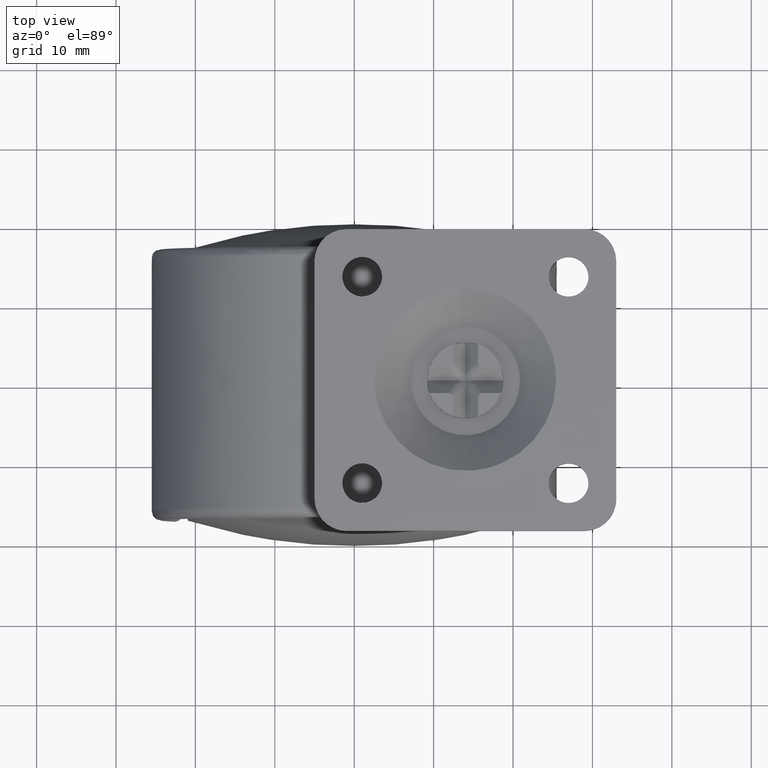
[diagram: clean part render]
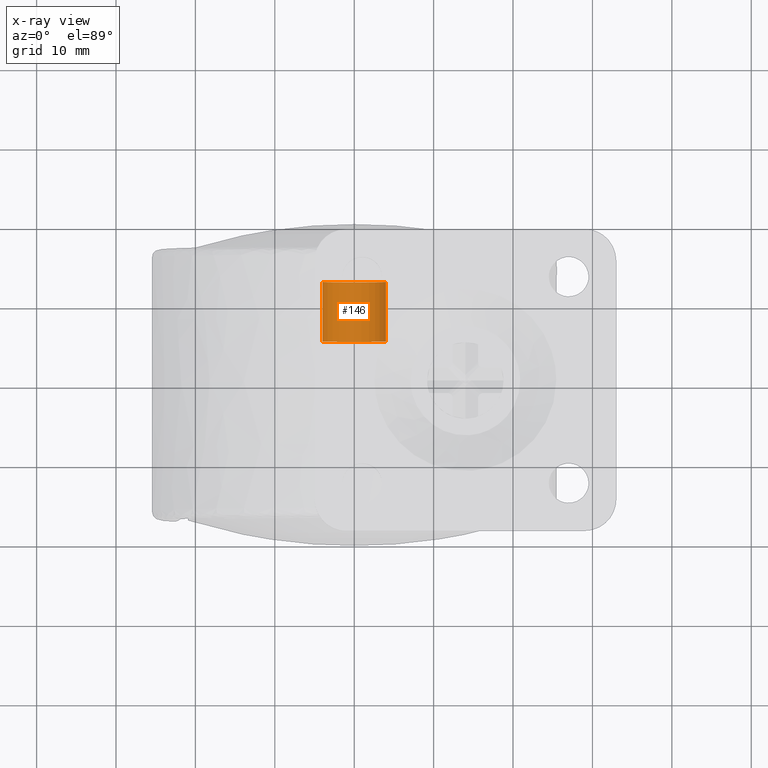
[diagram: x-ray — body ghosted, one internal face saturated and labeled with its STEP entity id]
A machine part, top view, then the same camera in x-ray: the body is ghosted and one INTERNAL B-rep face — a face not visible from any outside direction — is saturated and labeled: STEP entity #146.
In plain terms, the highlighted face is a freeform B-spline surface patch.
Its self-contained STEP definition (entity closure, byte-faithful):
#44=CARTESIAN_POINT('',(3.972038105454666,-13.187500000000005,0.472136938627034));
#45=CARTESIAN_POINT('',(3.985550461794422,-13.187500000000005,0.358458914551911));
#46=CARTESIAN_POINT('',(3.992539193687467,-13.187500000000000,0.244194158139428));
#47=CARTESIAN_POINT('',(4.236733351826894,-13.187500000000002,-3.748345035548039));
#48=CARTESIAN_POINT('',(0.244194158139428,-13.187500000000000,-3.992539193687467));
#49=CARTESIAN_POINT('',(-3.748345035548039,-13.187500000000002,-4.236733351826894));
#50=CARTESIAN_POINT('',(-3.992539193687467,-13.187500000000000,-0.244194158139428));
#51=CARTESIAN_POINT('',(3.972038105454666,-5.307812500000000,0.472136938627034));
#52=CARTESIAN_POINT('',(3.985550461794422,-5.307812499999998,0.358458914551911));
#53=CARTESIAN_POINT('',(3.992539193687467,-5.307812499999999,0.244194158139428));
#54=CARTESIAN_POINT('',(4.236733351826894,-5.307812499999999,-3.748345035548039));
#55=CARTESIAN_POINT('',(0.244194158139428,-5.307812499999999,-3.992539193687467));
#56=CARTESIAN_POINT('',(-3.748345035548039,-5.307812499999999,-4.236733351826894));
#57=CARTESIAN_POINT('',(-3.992539193687467,-5.307812499999999,-0.244194158139428));
#65=(BOUNDED_SURFACE()B_SPLINE_SURFACE(2,1,((#44,#51),(#45,#52),(#46,#53),(#47,#54),(#48,#55),(#49,#56),(#50,#57)),.UNSPECIFIED.,.F.,.F.,.U.)B_SPLINE_SURFACE_WITH_KNOTS((3,2,2,3),(2,2),(0.0,0.265096679918781,6.892513677888299,13.519930675857820),(0.0,7.879687500000005),.UNSPECIFIED.)GEOMETRIC_REPRESENTATION_ITEM()RATIONAL_B_SPLINE_SURFACE(((0.977505800795127,0.977505800795127),(0.988284271247462,0.988284271247462),(1.0,1.0),(0.707106781186548,0.707106781186548),(1.0,1.0),(0.707106781186548,0.707106781186548),(1.0,1.0)))REPRESENTATION_ITEM('')SURFACE());
#66=CARTESIAN_POINT('',(3.972038243175446,-13.0,0.472135779993803));
#67=VERTEX_POINT('',#66);
#68=CARTESIAN_POINT('',(0.0,-13.0,-4.0));
#69=VERTEX_POINT('',#68);
#70=CARTESIAN_POINT('',(3.972038243175446,-13.0,0.472135779993803));
#71=CARTESIAN_POINT('',(4.0,-13.000000000000002,0.236895893166589));
#72=CARTESIAN_POINT('',(4.0,-13.0,0.0));
#73=CARTESIAN_POINT('',(4.000000000000000,-13.000000000000002,-4.000000000000000));
#74=CARTESIAN_POINT('',(0.0,-13.0,-4.0));
#82=(BOUNDED_CURVE()B_SPLINE_CURVE(2,(#70,#71,#72,#73,#74),.UNSPECIFIED.,.F.,.U.)B_SPLINE_CURVE_WITH_KNOTS((3,2,3),(0.229562522813455,0.250000000000000,0.500000000000000),.UNSPECIFIED.)CURVE()GEOMETRIC_REPRESENTATION_ITEM()RATIONAL_B_SPLINE_CURVE((0.956026850813636,0.976056006089626,1.0,0.707106781186548,1.0))REPRESENTATION_ITEM(''));
#83=EDGE_CURVE('',#67,#69,#82,.T.);
#84=ORIENTED_EDGE('',*,*,#83,.F.);
#85=CARTESIAN_POINT('',(3.972038241520320,-5.500000000000000,0.472135793918266));
#86=VERTEX_POINT('',#85);
#87=CARTESIAN_POINT('',(3.972038243175446,-13.0,0.472135779993803));
#88=CARTESIAN_POINT('',(3.972038241520320,-5.500000000000000,0.472135793918266));
#89=QUASI_UNIFORM_CURVE('',1,(#87,#88),.UNSPECIFIED.,.F.,.U.);
#90=EDGE_CURVE('',#67,#86,#89,.T.);
#91=ORIENTED_EDGE('',*,*,#90,.T.);
#92=CARTESIAN_POINT('',(0.0,-5.500000000000000,-4.0));
#93=VERTEX_POINT('',#92);
#94=CARTESIAN_POINT('',(3.972038241520319,-5.500000000000000,0.472135793918266));
#95=CARTESIAN_POINT('',(4.000000000000000,-5.500000000000001,0.236895900202424));
#96=CARTESIAN_POINT('',(4.0,-5.500000000000000,0.0));
#97=CARTESIAN_POINT('',(4.000000000000000,-5.500000000000001,-4.000000000000000));
#98=CARTESIAN_POINT('',(0.0,-5.500000000000000,-4.0));
#106=(BOUNDED_CURVE()B_SPLINE_CURVE(2,(#94,#95,#96,#97,#98),.UNSPECIFIED.,.F.,.U.)B_SPLINE_CURVE_WITH_KNOTS((3,2,3),(0.229562522220994,0.250000000000000,0.500000000000000),.UNSPECIFIED.)CURVE()GEOMETRIC_REPRESENTATION_ITEM()RATIONAL_B_SPLINE_CURVE((0.956026849652387,0.976056005395514,1.0,0.707106781186548,1.0))REPRESENTATION_ITEM(''));
#107=EDGE_CURVE('',#86,#93,#106,.T.);
#108=ORIENTED_EDGE('',*,*,#107,.T.);
#109=CARTESIAN_POINT('',(-3.992539193684808,-5.500000000000000,-0.244194158182915));
#110=VERTEX_POINT('',#109);
#111=CARTESIAN_POINT('',(0.0,-5.500000000000000,-4.0));
#112=CARTESIAN_POINT('',(-3.762824267540670,-5.500000000000000,-4.0));
#113=CARTESIAN_POINT('',(-3.992539193684808,-5.499999999999999,-0.244194158182915));
#121=(BOUNDED_CURVE()B_SPLINE_CURVE(2,(#111,#112,#113),.UNSPECIFIED.,.F.,.U.)B_SPLINE_CURVE_WITH_KNOTS((3,3),(0.500000000000000,0.739332962238210),.UNSPECIFIED.)CURVE()GEOMETRIC_REPRESENTATION_ITEM()RATIONAL_B_SPLINE_CURVE((1.0,0.719603993287569,0.976072041665147))REPRESENTATION_ITEM(''));
#122=EDGE_CURVE('',#93,#110,#121,.T.);
#123=ORIENTED_EDGE('',*,*,#122,.T.);
#124=CARTESIAN_POINT('',(-3.992539193684808,-13.0,-0.244194158182915));
#125=VERTEX_POINT('',#124);
#126=CARTESIAN_POINT('',(-3.992539193684808,-13.0,-0.244194158182915));
#127=CARTESIAN_POINT('',(-3.992539193684808,-5.500000000000000,-0.244194158182915));
#128=QUASI_UNIFORM_CURVE('',1,(#126,#127),.UNSPECIFIED.,.F.,.U.);
#129=EDGE_CURVE('',#125,#110,#128,.T.);
#130=ORIENTED_EDGE('',*,*,#129,.F.);
#131=CARTESIAN_POINT('',(0.0,-13.0,-4.0));
#132=CARTESIAN_POINT('',(-3.762824267540670,-13.0,-4.0));
#133=CARTESIAN_POINT('',(-3.992539193684808,-12.999999999999996,-0.244194158182915));
#141=(BOUNDED_CURVE()B_SPLINE_CURVE(2,(#131,#132,#133),.UNSPECIFIED.,.F.,.U.)B_SPLINE_CURVE_WITH_KNOTS((3,3),(0.500000000000000,0.739332962238210),.UNSPECIFIED.)CURVE()GEOMETRIC_REPRESENTATION_ITEM()RATIONAL_B_SPLINE_CURVE((1.0,0.719603993287569,0.976072041665147))REPRESENTATION_ITEM(''));
#142=EDGE_CURVE('',#69,#125,#141,.T.);
#143=ORIENTED_EDGE('',*,*,#142,.F.);
#144=EDGE_LOOP('',(#84,#91,#108,#123,#130,#143));
#145=FACE_OUTER_BOUND('',#144,.T.);
#146=ADVANCED_FACE('',(#145),#65,.F.);